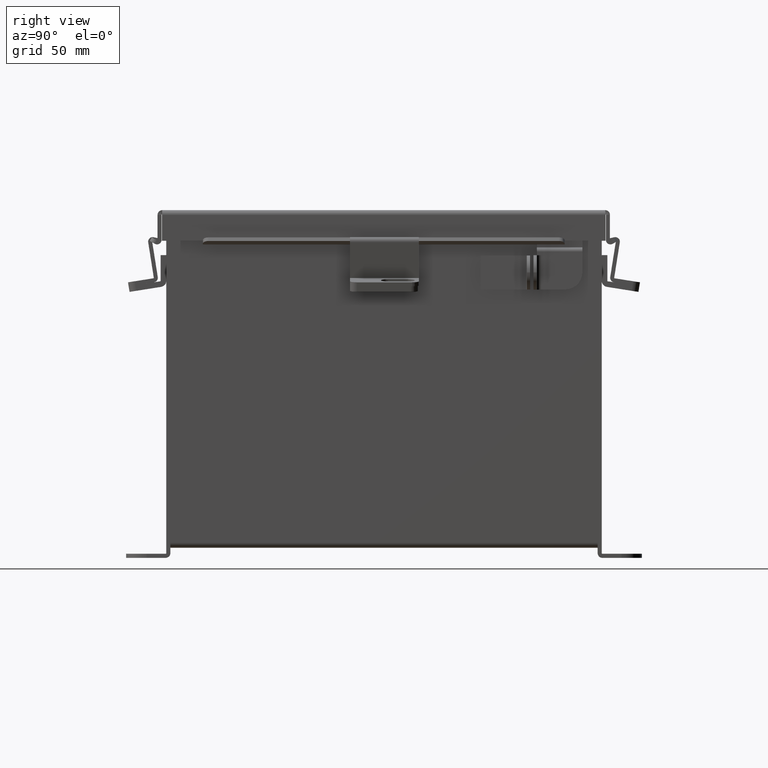
[diagram: clean part render]
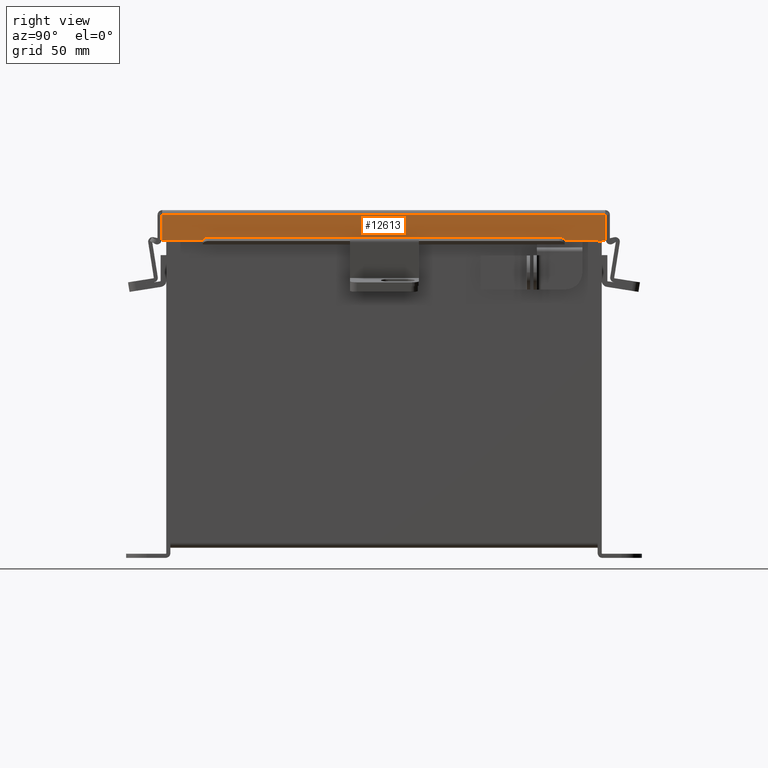
[diagram: same view with one face highlighted and labeled with its STEP entity id]
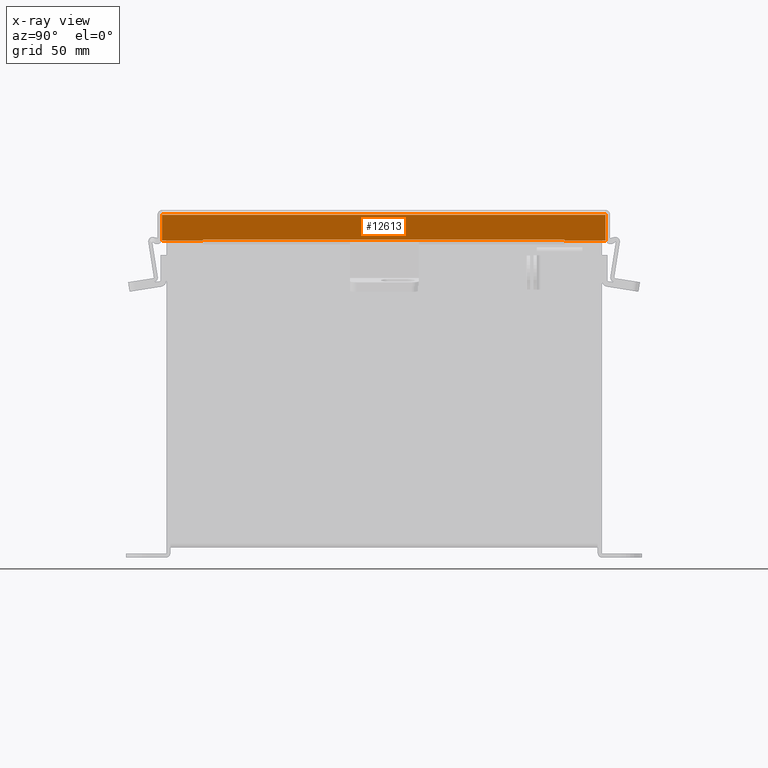
[diagram: x-ray of the same camera — body ghosted, the highlighted face saturated]
A machine part, right view. The second image highlights one B-rep face of the part: STEP entity #12613.
The next image is the same camera in x-ray: the body ghosted, the highlighted face saturated — about 0% of this face is hidden behind the body in this view.
In plain terms, the highlighted planar face has unit normal (-1, 0, -0).
Its self-contained STEP definition (entity closure, byte-faithful):
#50 = VERTEX_POINT ( 'NONE', #5799 ) ;
#390 = LINE ( 'NONE', #1230, #12622 ) ;
#400 = ORIENTED_EDGE ( 'NONE', *, *, #3542, .F. ) ;
#1187 = EDGE_CURVE ( 'NONE', #50, #7879, #390, .T. ) ;
#1230 = CARTESIAN_POINT ( 'NONE',  ( -3.156250000000000900, 3.324478932188136900, 0.4872999999999997900 ) ) ;
#1240 = ORIENTED_EDGE ( 'NONE', *, *, #12910, .T. ) ;
#1283 = VERTEX_POINT ( 'NONE', #6333 ) ;
#1527 = EDGE_CURVE ( 'NONE', #11456, #2868, #4982, .T. ) ;
#1716 = DIRECTION ( 'NONE',  ( -3.363654414526078900E-015, 0.0000000000000000000, 1.000000000000000000 ) ) ;
#1806 = FACE_OUTER_BOUND ( 'NONE', #11711, .T. ) ;
#1860 = VECTOR ( 'NONE', #7000, 39.37007874015748100 ) ;
#1879 = CARTESIAN_POINT ( 'NONE',  ( -3.156250000000000400, 0.0000000000000000000, 0.4872999999999997300 ) ) ;
#1980 = VECTOR ( 'NONE', #6300, 39.37007874015748100 ) ;
#2016 = VERTEX_POINT ( 'NONE', #3137 ) ;
#2099 = VECTOR ( 'NONE', #6898, 39.37007874015748100 ) ;
#2766 = VECTOR ( 'NONE', #10167, 39.37007874015748100 ) ;
#2844 = VERTEX_POINT ( 'NONE', #8058 ) ;
#2868 = VERTEX_POINT ( 'NONE', #6908 ) ;
#3137 = CARTESIAN_POINT ( 'NONE',  ( -3.156250000000000400, -3.324478932188134300, 0.4717115427318797100 ) ) ;
#3246 = CARTESIAN_POINT ( 'NONE',  ( -3.156249999999998700, 0.0000000000000000000, -1.087734790185951300E-014 ) ) ;
#3514 = CARTESIAN_POINT ( 'NONE',  ( -3.156250000000000400, 3.324478932188136500, 0.4717115427318797100 ) ) ;
#3542 = EDGE_CURVE ( 'NONE', #7879, #2016, #14179, .T. ) ;
#3741 = LINE ( 'NONE', #7591, #9682 ) ;
#3822 = EDGE_CURVE ( 'NONE', #2868, #9885, #4850, .T. ) ;
#4409 = DIRECTION ( 'NONE',  ( 3.363654414526078100E-015, 0.0000000000000000000, -1.000000000000000000 ) ) ;
#4667 = VECTOR ( 'NONE', #7443, 39.37007874015748100 ) ;
#4760 = CARTESIAN_POINT ( 'NONE',  ( -3.156249999999998700, -4.074478932188133800, 0.01299999999999986400 ) ) ;
#4850 = LINE ( 'NONE', #14020, #2099 ) ;
#4982 = LINE ( 'NONE', #9123, #1860 ) ;
#5261 = LINE ( 'NONE', #14703, #7327 ) ;
#5799 = CARTESIAN_POINT ( 'NONE',  ( -3.156250000000000400, 3.324478932188136900, 0.4872999999999997300 ) ) ;
#5953 = DIRECTION ( 'NONE',  ( 3.504962610060404700E-014, -3.504962610060404700E-014, -1.000000000000000000 ) ) ;
#6281 = ORIENTED_EDGE ( 'NONE', *, *, #1187, .F. ) ;
#6300 = DIRECTION ( 'NONE',  ( -0.0000000000000000000, 1.000000000000000000, 0.0000000000000000000 ) ) ;
#6331 = EDGE_CURVE ( 'NONE', #50, #9885, #9063, .T. ) ;
#6333 = CARTESIAN_POINT ( 'NONE',  ( -3.156250000000000400, -3.324478932188133800, 0.4872999999999997300 ) ) ;
#6898 = DIRECTION ( 'NONE',  ( -3.363654414526078900E-015, 0.0000000000000000000, 1.000000000000000000 ) ) ;
#6908 = CARTESIAN_POINT ( 'NONE',  ( -3.156249999999998700, 4.074478932188136500, 0.01299999999999985900 ) ) ;
#7000 = DIRECTION ( 'NONE',  ( -0.0000000000000000000, 1.000000000000000000, -0.0000000000000000000 ) ) ;
#7327 = VECTOR ( 'NONE', #9901, 39.37007874015748100 ) ;
#7443 = DIRECTION ( 'NONE',  ( -0.0000000000000000000, -1.000000000000000000, -0.0000000000000000000 ) ) ;
#7526 = CARTESIAN_POINT ( 'NONE',  ( -3.156250000000000400, 0.0000000000000000000, 0.4872999999999997300 ) ) ;
#7591 = CARTESIAN_POINT ( 'NONE',  ( -3.156249999999998700, -4.074478932188133800, -1.087734790185951300E-014 ) ) ;
#7879 = VERTEX_POINT ( 'NONE', #3514 ) ;
#8058 = CARTESIAN_POINT ( 'NONE',  ( -3.156250000000000400, -4.074478932188133800, 0.4872999999999997300 ) ) ;
#9063 = LINE ( 'NONE', #1879, #2766 ) ;
#9123 = CARTESIAN_POINT ( 'NONE',  ( -3.156249999999998700, 4.156250000000001800, 0.01299999999999986400 ) ) ;
#9682 = VECTOR ( 'NONE', #1716, 39.37007874015748100 ) ;
#9851 = ORIENTED_EDGE ( 'NONE', *, *, #1527, .F. ) ;
#9885 = VERTEX_POINT ( 'NONE', #10581 ) ;
#9901 = DIRECTION ( 'NONE',  ( 0.0000000000000000000, 0.0000000000000000000, 1.000000000000000000 ) ) ;
#10167 = DIRECTION ( 'NONE',  ( -0.0000000000000000000, 1.000000000000000000, 0.0000000000000000000 ) ) ;
#10358 = PLANE ( 'NONE',  #10557 ) ;
#10557 = AXIS2_PLACEMENT_3D ( 'NONE', #3246, #11537, #4409 ) ;
#10581 = CARTESIAN_POINT ( 'NONE',  ( -3.156250000000000400, 4.074478932188137400, 0.4872999999999997300 ) ) ;
#10949 = CARTESIAN_POINT ( 'NONE',  ( -3.156250000000000400, 3.324478932188137400, 0.4717115427318797100 ) ) ;
#11314 = ORIENTED_EDGE ( 'NONE', *, *, #14278, .F. ) ;
#11433 = LINE ( 'NONE', #7526, #1980 ) ;
#11456 = VERTEX_POINT ( 'NONE', #4760 ) ;
#11537 = DIRECTION ( 'NONE',  ( 1.000000000000000000, 0.0000000000000000000, 3.363654414526078100E-015 ) ) ;
#11711 = EDGE_LOOP ( 'NONE', ( #6281, #15297, #13077, #9851, #15335, #1240, #11314, #400 ) ) ;
#12613 = ADVANCED_FACE ( 'NONE', ( #1806 ), #10358, .F. ) ;
#12622 = VECTOR ( 'NONE', #5953, 39.37007874015748100 ) ;
#12910 = EDGE_CURVE ( 'NONE', #2844, #1283, #11433, .T. ) ;
#13077 = ORIENTED_EDGE ( 'NONE', *, *, #3822, .F. ) ;
#14020 = CARTESIAN_POINT ( 'NONE',  ( -3.156249999999998700, 4.074478932188137400, -2.512649847650986200E-016 ) ) ;
#14179 = LINE ( 'NONE', #10949, #4667 ) ;
#14278 = EDGE_CURVE ( 'NONE', #2016, #1283, #5261, .T. ) ;
#14703 = CARTESIAN_POINT ( 'NONE',  ( -3.156250000000000400, -3.324478932188134300, 0.4717115427318797100 ) ) ;
#15297 = ORIENTED_EDGE ( 'NONE', *, *, #6331, .T. ) ;
#15335 = ORIENTED_EDGE ( 'NONE', *, *, #15357, .T. ) ;
#15357 = EDGE_CURVE ( 'NONE', #11456, #2844, #3741, .T. ) ;